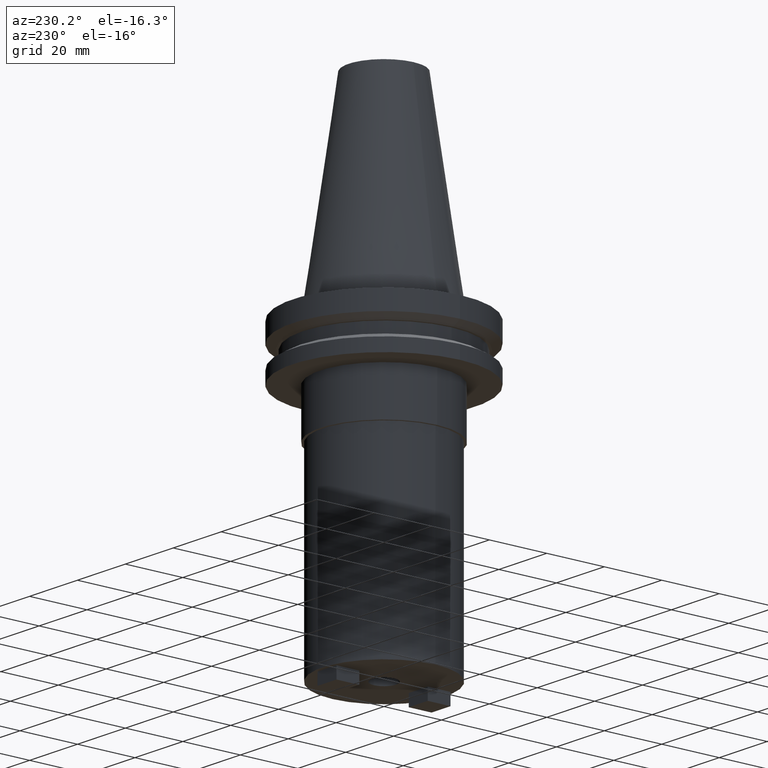
[diagram: clean part render]
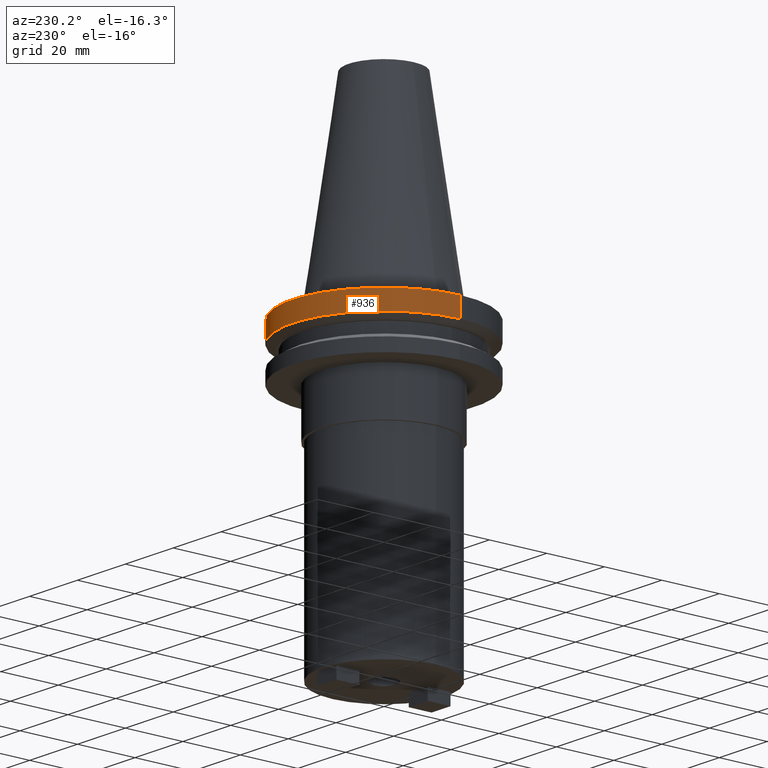
[diagram: same view with one face highlighted and labeled with its STEP entity id]
A machine part, auxiliary view. The second image highlights one B-rep face of the part: STEP entity #936.
In plain terms, the highlighted cylindrical surface (partial cylindrical patch) has radius 31.75 mm, axis along (-0, -0, 1).
Its self-contained STEP definition (entity closure, byte-faithful):
#54 = CARTESIAN_POINT ( 'NONE',  ( 0.000000000000000000, 0.000000000000000000, 68.25000000000000000 ) ) ;
#70 = DIRECTION ( 'NONE',  ( -0.000000000000000000, -0.000000000000000000, 1.000000000000000000 ) ) ;
#178 = VERTEX_POINT ( 'NONE', #234 ) ;
#189 = EDGE_LOOP ( 'NONE', ( #460, #408, #922, #567 ) ) ;
#217 = CARTESIAN_POINT ( 'NONE',  ( 31.75000000000000000, 0.000000000000000000, -1.000000000000000888 ) ) ;
#219 = CARTESIAN_POINT ( 'NONE',  ( -31.75000000000000000, 3.888253587292846476E-15, -7.605276606597335842 ) ) ;
#222 = CARTESIAN_POINT ( 'NONE',  ( 0.000000000000000000, 0.000000000000000000, -1.000000000000000888 ) ) ;
#229 = VECTOR ( 'NONE', #883, 1000.000000000000000 ) ;
#232 = EDGE_CURVE ( 'NONE', #178, #991, #507, .T. ) ;
#234 = CARTESIAN_POINT ( 'NONE',  ( 31.75000000000000000, 0.000000000000000000, -7.605276606597335842 ) ) ;
#306 = CARTESIAN_POINT ( 'NONE',  ( -31.75000000000000000, 3.888253587292846476E-15, 68.25000000000000000 ) ) ;
#369 = AXIS2_PLACEMENT_3D ( 'NONE', #54, #388, #882 ) ;
#388 = DIRECTION ( 'NONE',  ( -0.000000000000000000, -0.000000000000000000, 1.000000000000000000 ) ) ;
#397 = DIRECTION ( 'NONE',  ( -0.000000000000000000, -0.000000000000000000, 1.000000000000000000 ) ) ;
#408 = ORIENTED_EDGE ( 'NONE', *, *, #478, .T. ) ;
#460 = ORIENTED_EDGE ( 'NONE', *, *, #914, .T. ) ;
#477 = DIRECTION ( 'NONE',  ( 1.000000000000000000, 0.000000000000000000, 0.000000000000000000 ) ) ;
#478 = EDGE_CURVE ( 'NONE', #496, #956, #874, .T. ) ;
#496 = VERTEX_POINT ( 'NONE', #219 ) ;
#498 = CARTESIAN_POINT ( 'NONE',  ( 0.000000000000000000, 0.000000000000000000, -7.605276606597335842 ) ) ;
#507 = LINE ( 'NONE', #1089, #906 ) ;
#547 = CARTESIAN_POINT ( 'NONE',  ( -31.75000000000000000, 3.888253587292846476E-15, -1.000000000000000888 ) ) ;
#562 = AXIS2_PLACEMENT_3D ( 'NONE', #498, #682, #621 ) ;
#567 = ORIENTED_EDGE ( 'NONE', *, *, #232, .F. ) ;
#621 = DIRECTION ( 'NONE',  ( 1.000000000000000000, 0.000000000000000000, 0.000000000000000000 ) ) ;
#680 = CIRCLE ( 'NONE', #562, 31.75000000000000000 ) ;
#682 = DIRECTION ( 'NONE',  ( -0.000000000000000000, -0.000000000000000000, 1.000000000000000000 ) ) ;
#841 = CIRCLE ( 'NONE', #1037, 31.75000000000000000 ) ;
#874 = LINE ( 'NONE', #306, #229 ) ;
#882 = DIRECTION ( 'NONE',  ( 1.000000000000000000, 0.000000000000000000, 0.000000000000000000 ) ) ;
#883 = DIRECTION ( 'NONE',  ( -0.000000000000000000, -0.000000000000000000, 1.000000000000000000 ) ) ;
#906 = VECTOR ( 'NONE', #70, 1000.000000000000000 ) ;
#914 = EDGE_CURVE ( 'NONE', #178, #496, #680, .T. ) ;
#922 = ORIENTED_EDGE ( 'NONE', *, *, #1064, .F. ) ;
#936 = ADVANCED_FACE ( 'NONE', ( #941 ), #1055, .T. ) ;
#941 = FACE_OUTER_BOUND ( 'NONE', #189, .T. ) ;
#956 = VERTEX_POINT ( 'NONE', #547 ) ;
#991 = VERTEX_POINT ( 'NONE', #217 ) ;
#1037 = AXIS2_PLACEMENT_3D ( 'NONE', #222, #397, #477 ) ;
#1055 = CYLINDRICAL_SURFACE ( 'NONE', #369, 31.75000000000000000 ) ;
#1064 = EDGE_CURVE ( 'NONE', #991, #956, #841, .T. ) ;
#1089 = CARTESIAN_POINT ( 'NONE',  ( 31.75000000000000000, 0.000000000000000000, 68.25000000000000000 ) ) ;